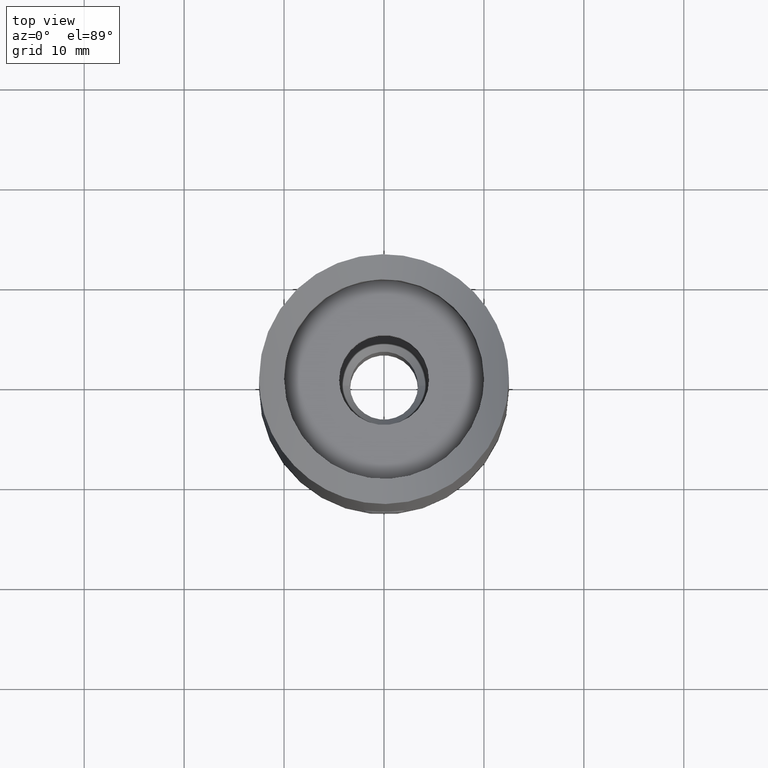
[diagram: clean part render]
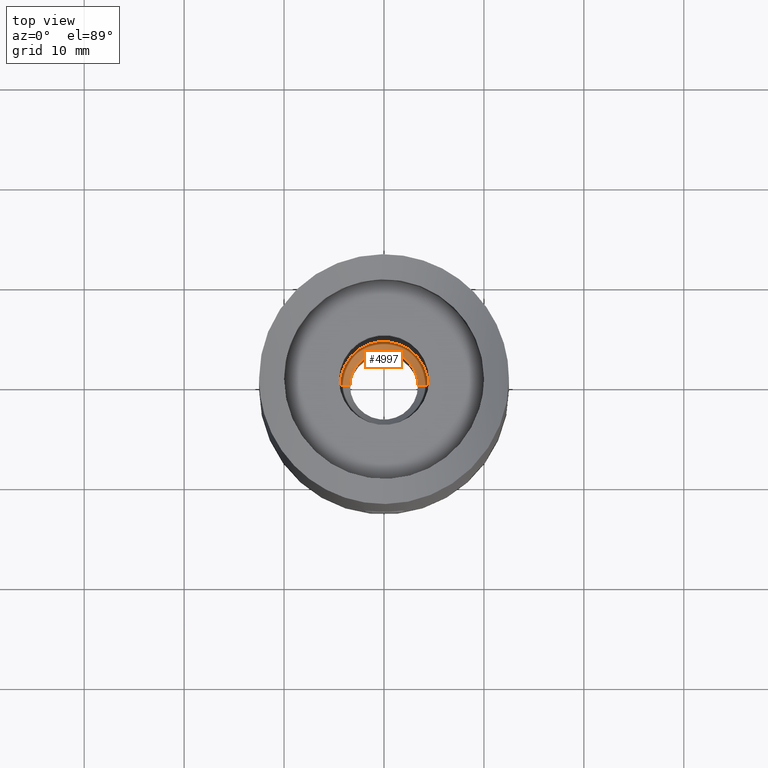
[diagram: same view with one face highlighted and labeled with its STEP entity id]
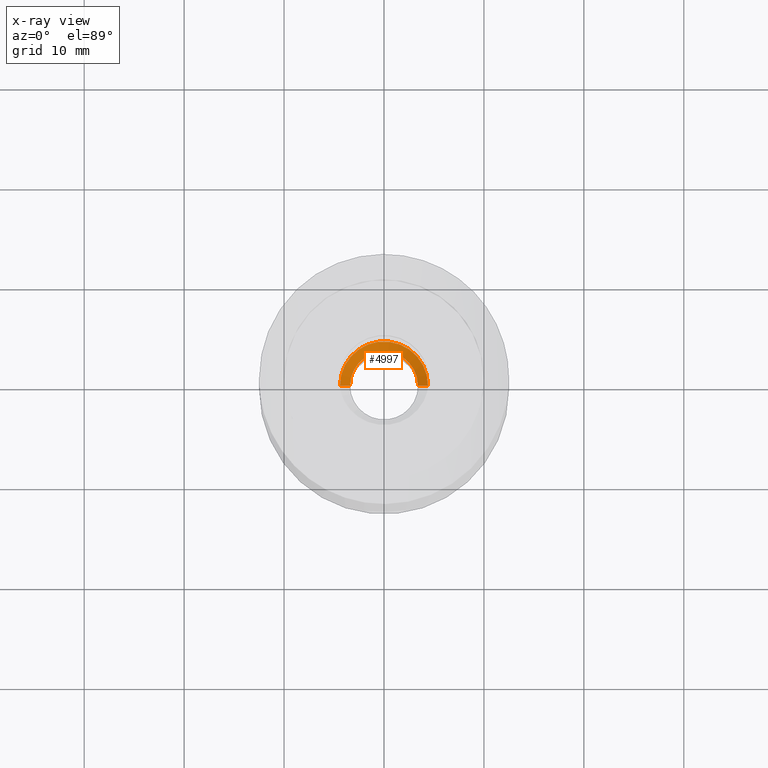
[diagram: x-ray of the same camera — body ghosted, the highlighted face saturated]
A machine part, top view. The second image highlights one B-rep face of the part: STEP entity #4997.
The next image is the same camera in x-ray: the body ghosted, the highlighted face saturated — about 0% of this face is hidden behind the body in this view.
In plain terms, the highlighted conical surface has half-angle 45 deg.
Its self-contained STEP definition (entity closure, byte-faithful):
#359 = CARTESIAN_POINT ( 'NONE',  ( 0.0000000000000000000, 0.0000000000000000000, -0.9999999999999940000 ) ) ;
#880 = ORIENTED_EDGE ( 'NONE', *, *, #3191, .F. ) ;
#905 = FACE_OUTER_BOUND ( 'NONE', #2148, .T. ) ;
#1249 = CIRCLE ( 'NONE', #3913, 3.399999999999991500 ) ;
#2148 = EDGE_LOOP ( 'NONE', ( #880, #7434, #7363, #7312 ) ) ;
#2570 = CARTESIAN_POINT ( 'NONE',  ( -4.399999999999987000, 5.388445916248338200E-016, 0.0000000000000000000 ) ) ;
#2619 = EDGE_CURVE ( 'NONE', #12067, #9432, #5830, .T. ) ;
#2785 = CONICAL_SURFACE ( 'NONE', #13809, 3.399999999999991500, 0.7853981633974492800 ) ;
#3191 = EDGE_CURVE ( 'NONE', #12651, #12067, #14219, .T. ) ;
#3621 = DIRECTION ( 'NONE',  ( 1.000000000000000000, 0.0000000000000000000, 0.0000000000000000000 ) ) ;
#3913 = AXIS2_PLACEMENT_3D ( 'NONE', #7134, #11901, #5233 ) ;
#4235 = DIRECTION ( 'NONE',  ( -0.7071067811865483500, 8.659560562354944000E-017, 0.7071067811865468000 ) ) ;
#4741 = DIRECTION ( 'NONE',  ( 0.0000000000000000000, 0.0000000000000000000, 1.000000000000000000 ) ) ;
#4758 = EDGE_CURVE ( 'NONE', #11364, #12651, #1249, .T. ) ;
#4997 = ADVANCED_FACE ( 'NONE', ( #905 ), #2785, .F. ) ;
#5034 = DIRECTION ( 'NONE',  ( 0.0000000000000000000, -1.000000000000000000, 6.563074804307201300E-018 ) ) ;
#5233 = DIRECTION ( 'NONE',  ( 1.000000000000000000, 0.0000000000000000000, 0.0000000000000000000 ) ) ;
#5345 = CARTESIAN_POINT ( 'NONE',  ( -3.399999999999991500, 4.163799117100990700E-016, -0.9999999999999940000 ) ) ;
#5497 = EDGE_CURVE ( 'NONE', #11364, #9432, #7462, .T. ) ;
#5683 = DIRECTION ( 'NONE',  ( 0.7071067811865483500, 0.0000000000000000000, 0.7071067811865468000 ) ) ;
#5830 = CIRCLE ( 'NONE', #12490, 4.399999999999990600 ) ;
#6961 = CARTESIAN_POINT ( 'NONE',  ( 4.399999999999987000, 0.0000000000000000000, 0.0000000000000000000 ) ) ;
#7112 = VECTOR ( 'NONE', #5683, 1000.000000000000000 ) ;
#7134 = CARTESIAN_POINT ( 'NONE',  ( 0.0000000000000000000, 0.0000000000000000000, -0.9999999999999940000 ) ) ;
#7312 = ORIENTED_EDGE ( 'NONE', *, *, #2619, .F. ) ;
#7363 = ORIENTED_EDGE ( 'NONE', *, *, #5497, .T. ) ;
#7434 = ORIENTED_EDGE ( 'NONE', *, *, #4758, .F. ) ;
#7462 = LINE ( 'NONE', #8922, #7112 ) ;
#8922 = CARTESIAN_POINT ( 'NONE',  ( 3.399999999999991500, 0.0000000000000000000, -0.9999999999999940000 ) ) ;
#9432 = VERTEX_POINT ( 'NONE', #6961 ) ;
#9472 = DIRECTION ( 'NONE',  ( -0.0000000000000000000, -6.563074804307201300E-018, -1.000000000000000000 ) ) ;
#10911 = VECTOR ( 'NONE', #4235, 1000.000000000000000 ) ;
#11364 = VERTEX_POINT ( 'NONE', #12946 ) ;
#11662 = CARTESIAN_POINT ( 'NONE',  ( 0.0000000000000000000, 0.0000000000000000000, 0.0000000000000000000 ) ) ;
#11901 = DIRECTION ( 'NONE',  ( 0.0000000000000000000, 0.0000000000000000000, 1.000000000000000000 ) ) ;
#12067 = VERTEX_POINT ( 'NONE', #2570 ) ;
#12490 = AXIS2_PLACEMENT_3D ( 'NONE', #11662, #9472, #5034 ) ;
#12651 = VERTEX_POINT ( 'NONE', #13754 ) ;
#12946 = CARTESIAN_POINT ( 'NONE',  ( 3.399999999999991500, 0.0000000000000000000, -0.9999999999999940000 ) ) ;
#13754 = CARTESIAN_POINT ( 'NONE',  ( -3.399999999999991500, 4.163799117100990700E-016, -0.9999999999999940000 ) ) ;
#13809 = AXIS2_PLACEMENT_3D ( 'NONE', #359, #4741, #3621 ) ;
#14219 = LINE ( 'NONE', #5345, #10911 ) ;